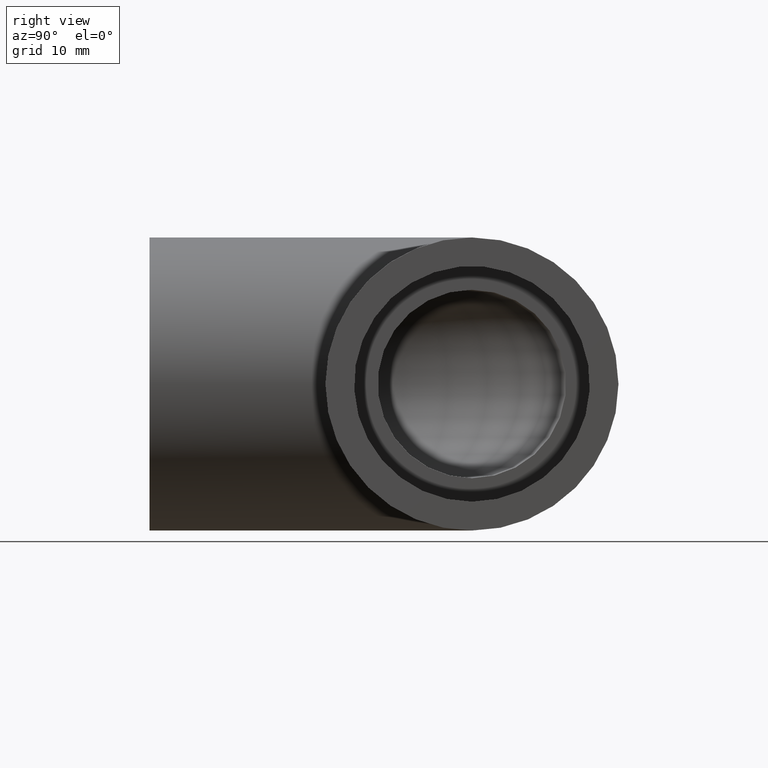
[diagram: clean part render]
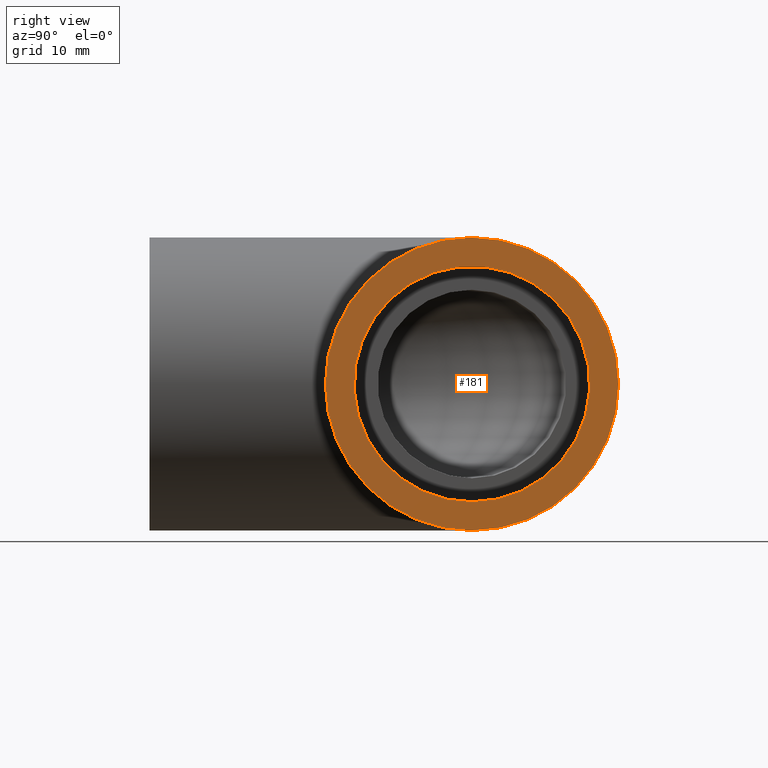
[diagram: same view with one face highlighted and labeled with its STEP entity id]
A machine part, right view. The second image highlights one B-rep face of the part: STEP entity #181.
In plain terms, the highlighted planar face has unit normal (1, 0, 0).
Its self-contained STEP definition (entity closure, byte-faithful):
#22=PLANE('',#214);
#37=FACE_BOUND('',#81,.T.);
#52=FACE_OUTER_BOUND('',#80,.T.);
#80=EDGE_LOOP('',(#158));
#81=EDGE_LOOP('',(#159));
#89=CIRCLE('',#197,12.0585);
#96=CIRCLE('',#213,15.);
#104=VERTEX_POINT('',#300);
#111=VERTEX_POINT('',#323);
#119=EDGE_CURVE('',#104,#104,#89,.T.);
#127=EDGE_CURVE('',#111,#111,#96,.T.);
#158=ORIENTED_EDGE('',*,*,#127,.T.);
#159=ORIENTED_EDGE('',*,*,#119,.T.);
#181=ADVANCED_FACE('',(#52,#37),#22,.T.);
#197=AXIS2_PLACEMENT_3D('',#301,#243,#244);
#213=AXIS2_PLACEMENT_3D('',#324,#275,#276);
#214=AXIS2_PLACEMENT_3D('',#325,#277,#278);
#243=DIRECTION('center_axis',(-1.,0.,0.));
#244=DIRECTION('ref_axis',(0.,0.,1.));
#275=DIRECTION('center_axis',(1.,0.,0.));
#276=DIRECTION('ref_axis',(0.,0.,-1.));
#277=DIRECTION('center_axis',(1.,0.,0.));
#278=DIRECTION('ref_axis',(0.,0.,-1.));
#300=CARTESIAN_POINT('',(34.,1.47674034275184E-15,-12.0585));
#301=CARTESIAN_POINT('Origin',(34.,0.,0.));
#323=CARTESIAN_POINT('',(34.,15.,0.));
#324=CARTESIAN_POINT('Origin',(34.,0.,0.));
#325=CARTESIAN_POINT('Origin',(34.,0.,0.));